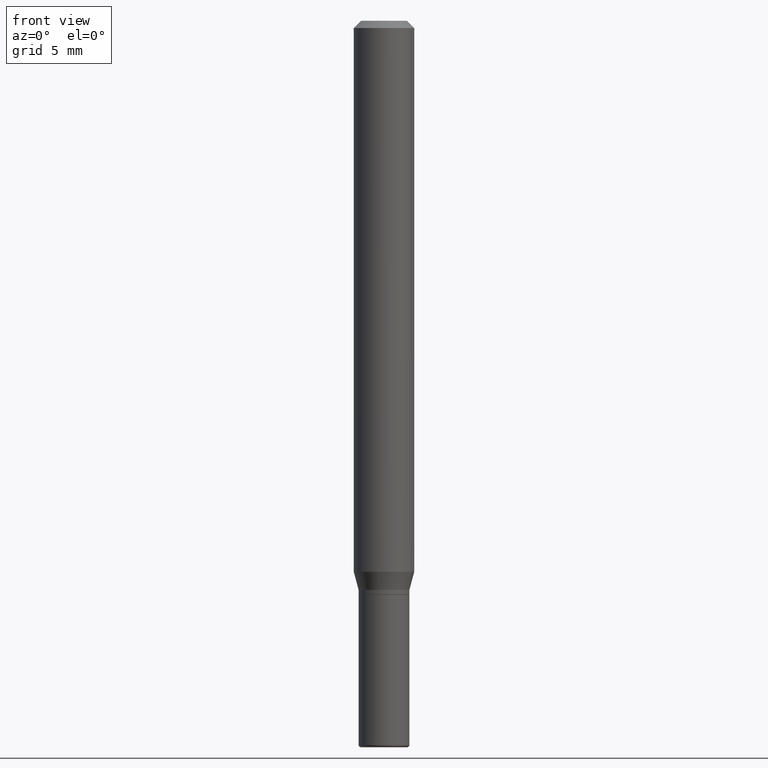
[diagram: clean part render]
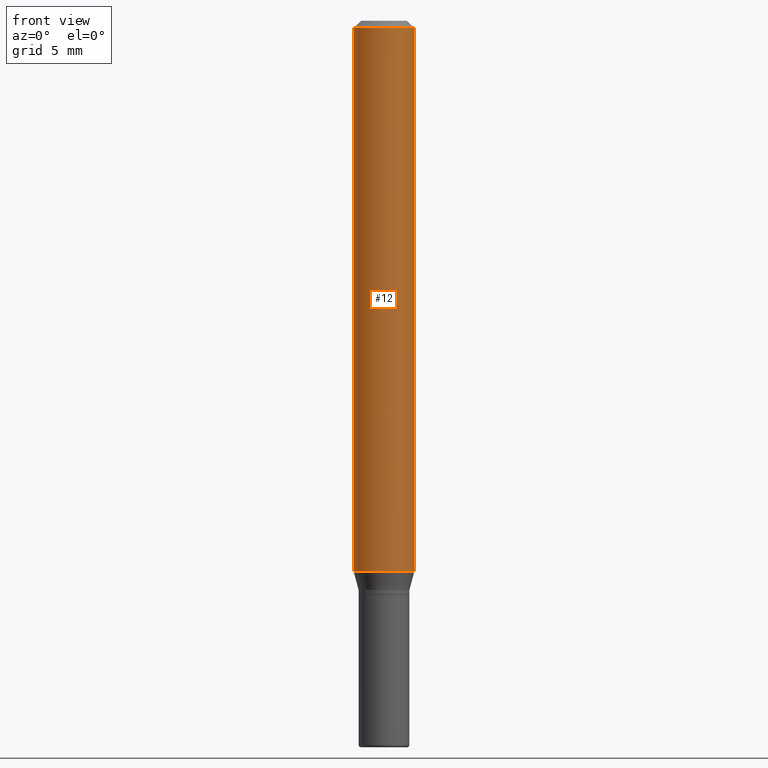
[diagram: same view with one face highlighted and labeled with its STEP entity id]
A machine part, front view. The second image highlights one B-rep face of the part: STEP entity #12.
In plain terms, the highlighted cylindrical surface (edge-blend (fillet) strip) has radius 1.5875 mm, axis along (-0, 0, 1).
Its self-contained STEP definition (entity closure, byte-faithful):
#2 = VECTOR ( 'NONE', #123, 39.37007874015748143 ) ;
#5 = VERTEX_POINT ( 'NONE', #177 ) ;
#12 = ADVANCED_FACE ( 'NONE', ( #182 ), #507, .T. ) ;
#17 = CARTESIAN_POINT ( 'NONE',  ( -0.06250000000000000000, 4.440892098500626162E-16, -3.074334431409316114E-30 ) ) ;
#20 = LINE ( 'NONE', #17, #2 ) ;
#72 = VERTEX_POINT ( 'NONE', #174 ) ;
#76 = DIRECTION ( 'NONE',  ( -2.445468806185136877E-29, 3.491481338843145188E-15, 1.000000000000000000 ) ) ;
#79 = CARTESIAN_POINT ( 'NONE',  ( 3.668203209277632395E-31, -5.237222008264614861E-17, -0.01499999999999970281 ) ) ;
#85 = DIRECTION ( 'NONE',  ( -2.445468806185136597E-29, 3.491481338843145583E-15, 1.000000000000000000 ) ) ;
#111 = DIRECTION ( 'NONE',  ( 1.000000000000000000, -6.982962677686266711E-15, 0.000000000000000000 ) ) ;
#123 = DIRECTION ( 'NONE',  ( -2.445468806185136877E-29, 3.491481338843145188E-15, 1.000000000000000000 ) ) ;
#140 = DIRECTION ( 'NONE',  ( 1.000000000000000000, -6.982962677686270655E-15, 0.000000000000000000 ) ) ;
#156 = ORIENTED_EDGE ( 'NONE', *, *, #344, .F. ) ;
#160 = AXIS2_PLACEMENT_3D ( 'NONE', #419, #209, #140 ) ;
#161 = EDGE_CURVE ( 'NONE', #5, #328, #180, .T. ) ;
#174 = CARTESIAN_POINT ( 'NONE',  ( 0.06250000000000000000, -4.408621882993678121E-15, -1.137679491924311836 ) ) ;
#177 = CARTESIAN_POINT ( 'NONE',  ( -0.06250000000000000000, -1.568190258010403558E-15, -0.01499999999999970281 ) ) ;
#180 = CIRCLE ( 'NONE', #356, 0.06250000000000000000 ) ;
#182 = FACE_OUTER_BOUND ( 'NONE', #308, .T. ) ;
#191 = ORIENTED_EDGE ( 'NONE', *, *, #477, .T. ) ;
#205 = CARTESIAN_POINT ( 'NONE',  ( 0.06250000000000000000, -4.888073874380378612E-16, -0.01499999999999970281 ) ) ;
#209 = DIRECTION ( 'NONE',  ( -2.445468806185136597E-29, 3.491481338843145583E-15, 1.000000000000000000 ) ) ;
#220 = ORIENTED_EDGE ( 'NONE', *, *, #223, .T. ) ;
#223 = EDGE_CURVE ( 'NONE', #72, #328, #363, .T. ) ;
#230 = ORIENTED_EDGE ( 'NONE', *, *, #161, .F. ) ;
#235 = VECTOR ( 'NONE', #76, 39.37007874015748143 ) ;
#272 = CIRCLE ( 'NONE', #160, 0.06250000000000000000 ) ;
#294 = VERTEX_POINT ( 'NONE', #346 ) ;
#308 = EDGE_LOOP ( 'NONE', ( #156, #191, #220, #230 ) ) ;
#328 = VERTEX_POINT ( 'NONE', #205 ) ;
#344 = EDGE_CURVE ( 'NONE', #294, #5, #20, .T. ) ;
#346 = CARTESIAN_POINT ( 'NONE',  ( -0.06250000000000000000, -3.528097505788223835E-15, -1.137679491924311836 ) ) ;
#356 = AXIS2_PLACEMENT_3D ( 'NONE', #79, #485, #111 ) ;
#363 = LINE ( 'NONE', #445, #235 ) ;
#419 = CARTESIAN_POINT ( 'NONE',  ( 2.782159708937459794E-29, -3.972186715638285663E-15, -1.137679491924311836 ) ) ;
#445 = CARTESIAN_POINT ( 'NONE',  ( 0.06250000000000000000, -4.364351673553916694E-16, 3.047610484872459871E-30 ) ) ;
#457 = CARTESIAN_POINT ( 'NONE',  ( 0.000000000000000000, 0.000000000000000000, 0.000000000000000000 ) ) ;
#461 = DIRECTION ( 'NONE',  ( 1.000000000000000000, -6.982962677686266711E-15, 4.876176775795935793E-29 ) ) ;
#477 = EDGE_CURVE ( 'NONE', #294, #72, #272, .T. ) ;
#485 = DIRECTION ( 'NONE',  ( -2.445468806185136597E-29, 3.491481338843145583E-15, 1.000000000000000000 ) ) ;
#492 = AXIS2_PLACEMENT_3D ( 'NONE', #457, #85, #461 ) ;
#507 = CYLINDRICAL_SURFACE ( 'NONE', #492, 0.06250000000000000000 ) ;